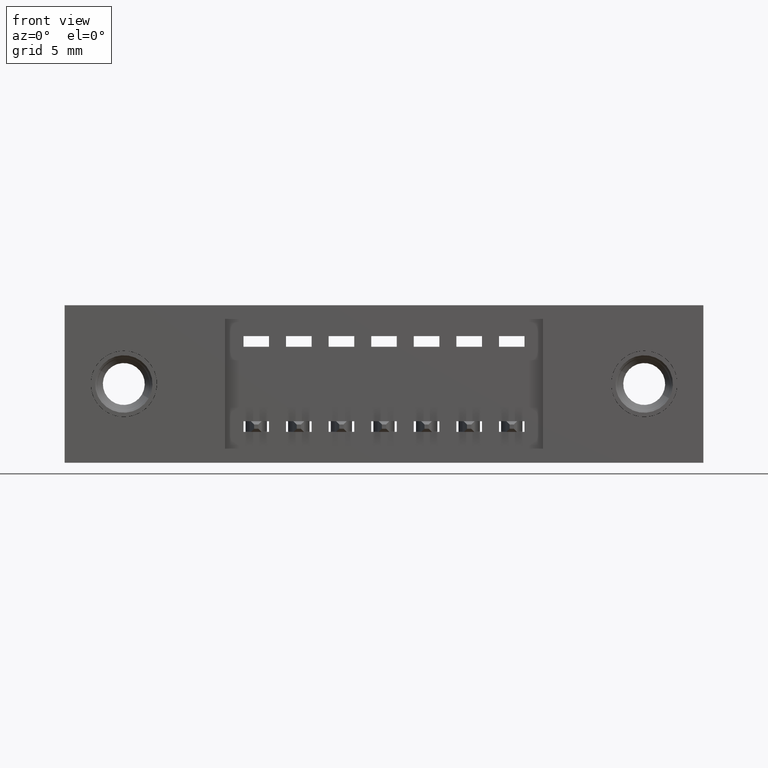
[diagram: clean part render]
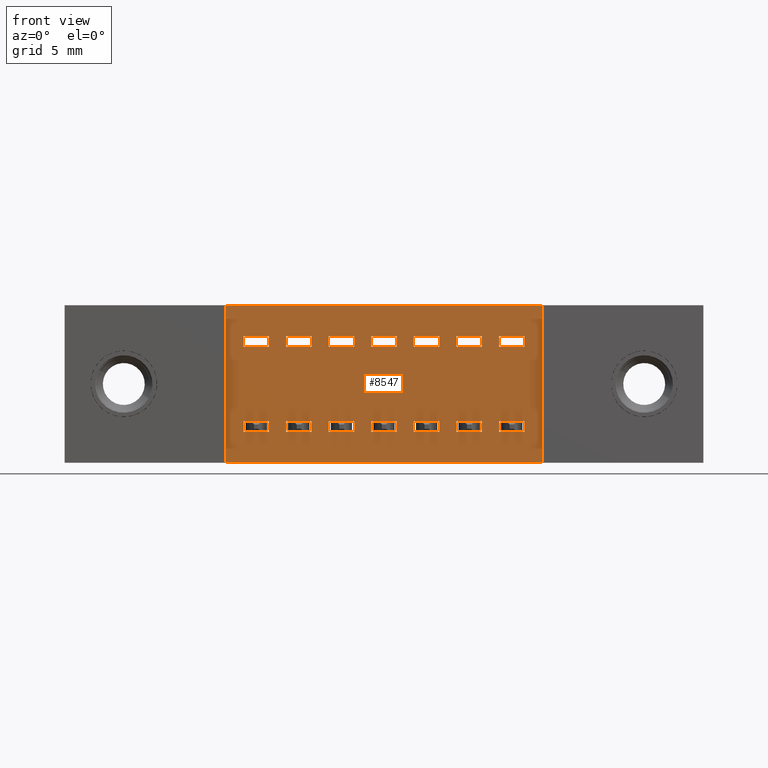
[diagram: same view with one face highlighted and labeled with its STEP entity id]
A machine part, front view. The second image highlights one B-rep face of the part: STEP entity #8547.
In plain terms, the highlighted planar face has unit normal (0, 1, 0).
Its self-contained STEP definition (entity closure, byte-faithful):
#4 = VECTOR ( 'NONE', #9526, 39.37007874015748100 ) ;
#14 = CARTESIAN_POINT ( 'NONE',  ( 0.5800000000000000700, 0.04000000000000000800, -0.07249999999999999500 ) ) ;
#21 = VERTEX_POINT ( 'NONE', #4263 ) ;
#34 = CARTESIAN_POINT ( 'NONE',  ( 0.9199999999999999300, 0.04000000000000000800, -0.07250000000000005100 ) ) ;
#35 = CARTESIAN_POINT ( 'NONE',  ( 0.8799999999999998900, 0.04000000000000000100, -0.2725000000000000800 ) ) ;
#76 = DIRECTION ( 'NONE',  ( 1.000000000000000000, -0.0000000000000000000, -0.0000000000000000000 ) ) ;
#86 = EDGE_CURVE ( 'NONE', #8010, #3227, #4441, .T. ) ;
#99 = DIRECTION ( 'NONE',  ( 0.0000000000000000000, 3.414809992080328000E-016, -1.000000000000000000 ) ) ;
#120 = VECTOR ( 'NONE', #9010, 39.37007874015748100 ) ;
#175 = EDGE_CURVE ( 'NONE', #4097, #2690, #9243, .T. ) ;
#180 = DIRECTION ( 'NONE',  ( 0.0000000000000000000, 3.414809992080328000E-016, -1.000000000000000000 ) ) ;
#184 = EDGE_CURVE ( 'NONE', #2696, #6935, #3927, .T. ) ;
#251 = EDGE_CURVE ( 'NONE', #2330, #9524, #7065, .T. ) ;
#271 = LINE ( 'NONE', #7861, #6742 ) ;
#283 = VECTOR ( 'NONE', #5199, 39.37007874015748100 ) ;
#292 = CARTESIAN_POINT ( 'NONE',  ( 0.3770000000000000600, 0.04000000000000000100, -0.3700000000000000000 ) ) ;
#317 = ORIENTED_EDGE ( 'NONE', *, *, #184, .T. ) ;
#322 = CARTESIAN_POINT ( 'NONE',  ( 0.5800000000000000700, 0.04000000000000000100, -0.09750000000000000300 ) ) ;
#346 = LINE ( 'NONE', #3853, #6317 ) ;
#360 = CARTESIAN_POINT ( 'NONE',  ( 0.7199999999999998600, 0.04000000000000000800, -0.2975000000000001000 ) ) ;
#395 = EDGE_CURVE ( 'NONE', #2705, #3015, #9584, .T. ) ;
#406 = CARTESIAN_POINT ( 'NONE',  ( 1.123000000000000200, 0.04000000000000000100, -0.3700000000000000000 ) ) ;
#409 = CARTESIAN_POINT ( 'NONE',  ( 0.6200000000000000000, 0.04000000000000000800, -0.2975000000000001000 ) ) ;
#413 = ORIENTED_EDGE ( 'NONE', *, *, #5372, .T. ) ;
#416 = LINE ( 'NONE', #2516, #4604 ) ;
#423 = VERTEX_POINT ( 'NONE', #4434 ) ;
#457 = CARTESIAN_POINT ( 'NONE',  ( 0.5200000000000000200, 0.04000000000000000100, -0.09750000000000000300 ) ) ;
#458 = ORIENTED_EDGE ( 'NONE', *, *, #8378, .T. ) ;
#475 = DIRECTION ( 'NONE',  ( 0.0000000000000000000, 3.414809992080328000E-016, -1.000000000000000000 ) ) ;
#476 = LINE ( 'NONE', #6934, #6205 ) ;
#480 = LINE ( 'NONE', #8050, #4 ) ;
#482 = DIRECTION ( 'NONE',  ( 1.000000000000000000, -0.0000000000000000000, -0.0000000000000000000 ) ) ;
#527 = VECTOR ( 'NONE', #8025, 39.37007874015748100 ) ;
#543 = CARTESIAN_POINT ( 'NONE',  ( 0.3770000000000000600, 0.04000000000000000100, 0.0000000000000000000 ) ) ;
#578 = CARTESIAN_POINT ( 'NONE',  ( 0.7799999999999999200, 0.04000000000000000100, -0.2725000000000000800 ) ) ;
#584 = ORIENTED_EDGE ( 'NONE', *, *, #1234, .T. ) ;
#625 = ORIENTED_EDGE ( 'NONE', *, *, #1334, .T. ) ;
#669 = LINE ( 'NONE', #5425, #4614 ) ;
#693 = CARTESIAN_POINT ( 'NONE',  ( 0.5200000000000000200, 0.04000000000000000100, -0.2725000000000000200 ) ) ;
#728 = LINE ( 'NONE', #9497, #4436 ) ;
#778 = DIRECTION ( 'NONE',  ( 1.000000000000000000, -0.0000000000000000000, -0.0000000000000000000 ) ) ;
#786 = VERTEX_POINT ( 'NONE', #2935 ) ;
#797 = VERTEX_POINT ( 'NONE', #9082 ) ;
#857 = EDGE_CURVE ( 'NONE', #6252, #1839, #3681, .T. ) ;
#874 = EDGE_CURVE ( 'NONE', #797, #4955, #1342, .T. ) ;
#875 = CARTESIAN_POINT ( 'NONE',  ( 0.5200000000000000200, 0.04000000000000000100, -0.2725000000000000200 ) ) ;
#905 = LINE ( 'NONE', #2046, #8841 ) ;
#935 = VERTEX_POINT ( 'NONE', #6325 ) ;
#972 = FACE_BOUND ( 'NONE', #2082, .T. ) ;
#995 = LINE ( 'NONE', #6880, #8915 ) ;
#1003 = CARTESIAN_POINT ( 'NONE',  ( 0.8199999999999998400, 0.04000000000000000800, -0.2975000000000001000 ) ) ;
#1030 = VERTEX_POINT ( 'NONE', #7048 ) ;
#1032 = CARTESIAN_POINT ( 'NONE',  ( 1.079999999999999800, 0.04000000000000000100, -0.2975000000000001000 ) ) ;
#1044 = VECTOR ( 'NONE', #6011, 39.37007874015748100 ) ;
#1077 = CARTESIAN_POINT ( 'NONE',  ( 0.9199999999999999300, 0.04000000000000000100, -0.09750000000000005900 ) ) ;
#1095 = LINE ( 'NONE', #3377, #7049 ) ;
#1102 = DIRECTION ( 'NONE',  ( 1.000000000000000000, -0.0000000000000000000, -0.0000000000000000000 ) ) ;
#1114 = EDGE_CURVE ( 'NONE', #9264, #4791, #5384, .T. ) ;
#1134 = VECTOR ( 'NONE', #6540, 39.37007874015748100 ) ;
#1136 = EDGE_LOOP ( 'NONE', ( #2318, #4781, #5507, #4465 ) ) ;
#1143 = VECTOR ( 'NONE', #8300, 39.37007874015748100 ) ;
#1151 = CARTESIAN_POINT ( 'NONE',  ( 1.020000000000000000, 0.04000000000000000800, -0.2975000000000001000 ) ) ;
#1165 = VERTEX_POINT ( 'NONE', #5758 ) ;
#1193 = VECTOR ( 'NONE', #6050, 39.37007874015748100 ) ;
#1215 = FACE_BOUND ( 'NONE', #7712, .T. ) ;
#1223 = VECTOR ( 'NONE', #3880, 39.37007874015748100 ) ;
#1234 = EDGE_CURVE ( 'NONE', #786, #4125, #8207, .T. ) ;
#1238 = EDGE_CURVE ( 'NONE', #3893, #1432, #480, .T. ) ;
#1239 = DIRECTION ( 'NONE',  ( -0.0000000000000000000, -3.414809992080328000E-016, -1.000000000000000000 ) ) ;
#1281 = EDGE_CURVE ( 'NONE', #1030, #786, #7740, .T. ) ;
#1284 = DIRECTION ( 'NONE',  ( 1.000000000000000000, -0.0000000000000000000, -0.0000000000000000000 ) ) ;
#1300 = EDGE_CURVE ( 'NONE', #6679, #1839, #7982, .T. ) ;
#1322 = CARTESIAN_POINT ( 'NONE',  ( 0.8199999999999998400, 0.04000000000000000800, -0.07250000000000003700 ) ) ;
#1329 = LINE ( 'NONE', #2047, #9687 ) ;
#1334 = EDGE_CURVE ( 'NONE', #4746, #4955, #1329, .T. ) ;
#1337 = ORIENTED_EDGE ( 'NONE', *, *, #2908, .T. ) ;
#1342 = LINE ( 'NONE', #4804, #5519 ) ;
#1366 = VECTOR ( 'NONE', #9474, 39.37007874015748100 ) ;
#1402 = EDGE_CURVE ( 'NONE', #7027, #5892, #5505, .T. ) ;
#1409 = ORIENTED_EDGE ( 'NONE', *, *, #6721, .F. ) ;
#1432 = VERTEX_POINT ( 'NONE', #2329 ) ;
#1445 = DIRECTION ( 'NONE',  ( 1.000000000000000000, -0.0000000000000000000, -0.0000000000000000000 ) ) ;
#1448 = CARTESIAN_POINT ( 'NONE',  ( 0.6799999999999999400, 0.04000000000000000100, -0.2975000000000001000 ) ) ;
#1450 = DIRECTION ( 'NONE',  ( 0.0000000000000000000, 3.414809992080328000E-016, -1.000000000000000000 ) ) ;
#1460 = FACE_BOUND ( 'NONE', #2990, .T. ) ;
#1470 = ORIENTED_EDGE ( 'NONE', *, *, #251, .T. ) ;
#1472 = ORIENTED_EDGE ( 'NONE', *, *, #3935, .T. ) ;
#1477 = PLANE ( 'NONE',  #4337 ) ;
#1482 = CARTESIAN_POINT ( 'NONE',  ( 0.6200000000000000000, 0.04000000000000000100, -0.2725000000000000800 ) ) ;
#1495 = EDGE_LOOP ( 'NONE', ( #1810, #4119, #458, #9535 ) ) ;
#1562 = VECTOR ( 'NONE', #5184, 39.37007874015748100 ) ;
#1564 = VERTEX_POINT ( 'NONE', #1448 ) ;
#1578 = ORIENTED_EDGE ( 'NONE', *, *, #9221, .F. ) ;
#1579 = DIRECTION ( 'NONE',  ( 0.0000000000000000000, 3.414809992080328000E-016, -1.000000000000000000 ) ) ;
#1581 = VECTOR ( 'NONE', #76, 39.37007874015748100 ) ;
#1654 = EDGE_LOOP ( 'NONE', ( #3632, #2311, #3057, #6734 ) ) ;
#1676 = EDGE_CURVE ( 'NONE', #5420, #797, #476, .T. ) ;
#1710 = DIRECTION ( 'NONE',  ( 0.0000000000000000000, 3.414809992080328000E-016, -1.000000000000000000 ) ) ;
#1712 = FACE_BOUND ( 'NONE', #6627, .T. ) ;
#1748 = CARTESIAN_POINT ( 'NONE',  ( 0.3770000000000000600, 0.04000000000000000100, 0.0000000000000000000 ) ) ;
#1797 = DIRECTION ( 'NONE',  ( 1.000000000000000000, -0.0000000000000000000, -0.0000000000000000000 ) ) ;
#1810 = ORIENTED_EDGE ( 'NONE', *, *, #8186, .F. ) ;
#1824 = EDGE_CURVE ( 'NONE', #4998, #1030, #1095, .T. ) ;
#1839 = VERTEX_POINT ( 'NONE', #1032 ) ;
#1853 = ORIENTED_EDGE ( 'NONE', *, *, #3592, .T. ) ;
#1857 = CARTESIAN_POINT ( 'NONE',  ( 0.9799999999999999800, 0.04000000000000000100, -0.2975000000000001000 ) ) ;
#1865 = CARTESIAN_POINT ( 'NONE',  ( 0.7799999999999999200, 0.04000000000000000100, -0.09750000000000001700 ) ) ;
#1867 = EDGE_LOOP ( 'NONE', ( #584, #413, #8350, #1939 ) ) ;
#1870 = DIRECTION ( 'NONE',  ( 1.000000000000000000, -0.0000000000000000000, -0.0000000000000000000 ) ) ;
#1920 = CARTESIAN_POINT ( 'NONE',  ( 0.5800000000000000700, 0.04000000000000000100, -0.09750000000000000300 ) ) ;
#1937 = LINE ( 'NONE', #5786, #8287 ) ;
#1939 = ORIENTED_EDGE ( 'NONE', *, *, #1281, .T. ) ;
#1992 = DIRECTION ( 'NONE',  ( -0.0000000000000000000, -3.414809992080328000E-016, -1.000000000000000000 ) ) ;
#2041 = EDGE_CURVE ( 'NONE', #4097, #3593, #3313, .T. ) ;
#2046 = CARTESIAN_POINT ( 'NONE',  ( 1.020000000000000000, 0.04000000000000000100, -0.09750000000000007300 ) ) ;
#2047 = CARTESIAN_POINT ( 'NONE',  ( 0.4799999999999999800, 0.04000000000000000100, -0.09749999999999998900 ) ) ;
#2073 = CARTESIAN_POINT ( 'NONE',  ( 0.4200000000000000400, 0.04000000000000000100, -0.2725000000000000200 ) ) ;
#2074 = ORIENTED_EDGE ( 'NONE', *, *, #8594, .F. ) ;
#2082 = EDGE_LOOP ( 'NONE', ( #8098, #1472, #8567, #2103 ) ) ;
#2103 = ORIENTED_EDGE ( 'NONE', *, *, #3299, .F. ) ;
#2138 = ORIENTED_EDGE ( 'NONE', *, *, #4993, .T. ) ;
#2156 = VECTOR ( 'NONE', #8081, 39.37007874015748100 ) ;
#2176 = DIRECTION ( 'NONE',  ( 1.000000000000000000, -0.0000000000000000000, -0.0000000000000000000 ) ) ;
#2182 = ORIENTED_EDGE ( 'NONE', *, *, #2041, .F. ) ;
#2186 = CARTESIAN_POINT ( 'NONE',  ( 0.5200000000000000200, 0.04000000000000000800, -0.2975000000000000400 ) ) ;
#2245 = CARTESIAN_POINT ( 'NONE',  ( 0.4200000000000000400, 0.04000000000000000800, -0.2975000000000000400 ) ) ;
#2266 = CARTESIAN_POINT ( 'NONE',  ( 0.8799999999999998900, 0.04000000000000000100, -0.09750000000000003100 ) ) ;
#2306 = EDGE_CURVE ( 'NONE', #7691, #3893, #5027, .T. ) ;
#2311 = ORIENTED_EDGE ( 'NONE', *, *, #5328, .T. ) ;
#2318 = ORIENTED_EDGE ( 'NONE', *, *, #4448, .F. ) ;
#2329 = CARTESIAN_POINT ( 'NONE',  ( 0.9799999999999999800, 0.04000000000000000100, -0.09750000000000005900 ) ) ;
#2330 = VERTEX_POINT ( 'NONE', #5142 ) ;
#2334 = CARTESIAN_POINT ( 'NONE',  ( 0.8799999999999998900, 0.04000000000000000100, -0.2975000000000001000 ) ) ;
#2337 = VECTOR ( 'NONE', #4017, 39.37007874015748100 ) ;
#2352 = CARTESIAN_POINT ( 'NONE',  ( 0.4800000000000000900, 0.04000000000000000100, -0.2975000000000000400 ) ) ;
#2369 = ORIENTED_EDGE ( 'NONE', *, *, #8509, .F. ) ;
#2492 = VERTEX_POINT ( 'NONE', #9442 ) ;
#2499 = CARTESIAN_POINT ( 'NONE',  ( 0.6799999999999999400, 0.04000000000000000800, -0.07250000000000000900 ) ) ;
#2516 = CARTESIAN_POINT ( 'NONE',  ( 0.8199999999999998400, 0.04000000000000000800, -0.07250000000000003700 ) ) ;
#2520 = VERTEX_POINT ( 'NONE', #6294 ) ;
#2599 = CARTESIAN_POINT ( 'NONE',  ( 0.4799999999999999800, 0.04000000000000000800, -0.07249999999999998100 ) ) ;
#2602 = VECTOR ( 'NONE', #1870, 39.37007874015748100 ) ;
#2611 = ORIENTED_EDGE ( 'NONE', *, *, #874, .F. ) ;
#2645 = LINE ( 'NONE', #1077, #527 ) ;
#2647 = CARTESIAN_POINT ( 'NONE',  ( 0.7799999999999999200, 0.04000000000000000100, -0.2975000000000001000 ) ) ;
#2648 = DIRECTION ( 'NONE',  ( 1.000000000000000000, -0.0000000000000000000, -0.0000000000000000000 ) ) ;
#2651 = EDGE_CURVE ( 'NONE', #6306, #2790, #7951, .T. ) ;
#2671 = VERTEX_POINT ( 'NONE', #6855 ) ;
#2677 = ORIENTED_EDGE ( 'NONE', *, *, #5956, .F. ) ;
#2690 = VERTEX_POINT ( 'NONE', #5701 ) ;
#2696 = VERTEX_POINT ( 'NONE', #5611 ) ;
#2705 = VERTEX_POINT ( 'NONE', #5577 ) ;
#2717 = EDGE_CURVE ( 'NONE', #8588, #9264, #5729, .T. ) ;
#2730 = CARTESIAN_POINT ( 'NONE',  ( 0.8199999999999998400, 0.04000000000000000100, -0.09750000000000003100 ) ) ;
#2737 = VECTOR ( 'NONE', #8762, 39.37007874015748100 ) ;
#2790 = VERTEX_POINT ( 'NONE', #3964 ) ;
#2848 = FACE_BOUND ( 'NONE', #5770, .T. ) ;
#2878 = ORIENTED_EDGE ( 'NONE', *, *, #2717, .T. ) ;
#2906 = DIRECTION ( 'NONE',  ( 1.000000000000000000, -0.0000000000000000000, -0.0000000000000000000 ) ) ;
#2908 = EDGE_CURVE ( 'NONE', #8676, #2330, #1937, .T. ) ;
#2921 = DIRECTION ( 'NONE',  ( 1.000000000000000000, -0.0000000000000000000, -0.0000000000000000000 ) ) ;
#2935 = CARTESIAN_POINT ( 'NONE',  ( 1.123000000000000200, 0.04000000000000000100, -0.3700000000000000000 ) ) ;
#2966 = VECTOR ( 'NONE', #482, 39.37007874015748100 ) ;
#2990 = EDGE_LOOP ( 'NONE', ( #3700, #7763, #2878, #8818 ) ) ;
#3015 = VERTEX_POINT ( 'NONE', #409 ) ;
#3041 = VERTEX_POINT ( 'NONE', #8137 ) ;
#3053 = VECTOR ( 'NONE', #2176, 39.37007874015748100 ) ;
#3057 = ORIENTED_EDGE ( 'NONE', *, *, #86, .T. ) ;
#3077 = EDGE_CURVE ( 'NONE', #3233, #4457, #4629, .T. ) ;
#3079 = FACE_BOUND ( 'NONE', #1136, .T. ) ;
#3086 = DIRECTION ( 'NONE',  ( 0.0000000000000000000, 3.414809992080328000E-016, -1.000000000000000000 ) ) ;
#3121 = CARTESIAN_POINT ( 'NONE',  ( 0.9799999999999999800, 0.04000000000000000100, -0.2725000000000000800 ) ) ;
#3144 = CARTESIAN_POINT ( 'NONE',  ( 1.020000000000000000, 0.04000000000000000800, -0.2975000000000001000 ) ) ;
#3203 = CARTESIAN_POINT ( 'NONE',  ( 0.7199999999999998600, 0.04000000000000000100, -0.2725000000000000800 ) ) ;
#3210 = VECTOR ( 'NONE', #99, 39.37007874015748100 ) ;
#3218 = DIRECTION ( 'NONE',  ( 0.0000000000000000000, 3.414809992080328000E-016, -1.000000000000000000 ) ) ;
#3227 = VERTEX_POINT ( 'NONE', #2266 ) ;
#3233 = VERTEX_POINT ( 'NONE', #3826 ) ;
#3259 = DIRECTION ( 'NONE',  ( 1.000000000000000000, -0.0000000000000000000, -0.0000000000000000000 ) ) ;
#3274 = DIRECTION ( 'NONE',  ( 1.000000000000000000, -0.0000000000000000000, -0.0000000000000000000 ) ) ;
#3299 = EDGE_CURVE ( 'NONE', #1165, #2520, #6549, .T. ) ;
#3303 = DIRECTION ( 'NONE',  ( -0.0000000000000000000, -3.414809992080328000E-016, -1.000000000000000000 ) ) ;
#3310 = DIRECTION ( 'NONE',  ( 1.000000000000000000, -0.0000000000000000000, -0.0000000000000000000 ) ) ;
#3311 = VECTOR ( 'NONE', #3259, 39.37007874015748100 ) ;
#3313 = LINE ( 'NONE', #3203, #9110 ) ;
#3328 = FACE_BOUND ( 'NONE', #8437, .T. ) ;
#3377 = CARTESIAN_POINT ( 'NONE',  ( 0.3770000000000000600, 0.04000000000000000100, -0.3700000000000000000 ) ) ;
#3436 = DIRECTION ( 'NONE',  ( 1.000000000000000000, -0.0000000000000000000, -0.0000000000000000000 ) ) ;
#3471 = LINE ( 'NONE', #5775, #1134 ) ;
#3489 = CARTESIAN_POINT ( 'NONE',  ( 0.5800000000000000700, 0.04000000000000000100, -0.2975000000000000400 ) ) ;
#3516 = CARTESIAN_POINT ( 'NONE',  ( 0.9199999999999999300, 0.04000000000000000100, -0.2725000000000000800 ) ) ;
#3563 = VECTOR ( 'NONE', #1710, 39.37007874015748100 ) ;
#3579 = ORIENTED_EDGE ( 'NONE', *, *, #857, .F. ) ;
#3592 = EDGE_CURVE ( 'NONE', #4555, #4225, #8162, .T. ) ;
#3593 = VERTEX_POINT ( 'NONE', #360 ) ;
#3602 = VECTOR ( 'NONE', #180, 39.37007874015748100 ) ;
#3617 = CARTESIAN_POINT ( 'NONE',  ( 0.4200000000000000400, 0.04000000000000000100, -0.2725000000000000200 ) ) ;
#3632 = ORIENTED_EDGE ( 'NONE', *, *, #6129, .F. ) ;
#3639 = CARTESIAN_POINT ( 'NONE',  ( 0.4800000000000000900, 0.04000000000000000100, -0.09749999999999998900 ) ) ;
#3674 = VECTOR ( 'NONE', #3218, 39.37007874015748100 ) ;
#3681 = LINE ( 'NONE', #1151, #7523 ) ;
#3691 = DIRECTION ( 'NONE',  ( -0.0000000000000000000, -0.0000000000000000000, -1.000000000000000000 ) ) ;
#3700 = ORIENTED_EDGE ( 'NONE', *, *, #7823, .F. ) ;
#3712 = DIRECTION ( 'NONE',  ( 1.000000000000000000, -0.0000000000000000000, -0.0000000000000000000 ) ) ;
#3754 = ORIENTED_EDGE ( 'NONE', *, *, #5187, .F. ) ;
#3826 = CARTESIAN_POINT ( 'NONE',  ( 0.4200000000000000400, 0.04000000000000000100, -0.2725000000000000200 ) ) ;
#3841 = DIRECTION ( 'NONE',  ( -0.0000000000000000000, 1.000000000000000000, 0.0000000000000000000 ) ) ;
#3853 = CARTESIAN_POINT ( 'NONE',  ( 0.5800000000000000700, 0.04000000000000000100, -0.2725000000000000200 ) ) ;
#3880 = DIRECTION ( 'NONE',  ( 0.0000000000000000000, 3.414809992080328000E-016, -1.000000000000000000 ) ) ;
#3893 = VERTEX_POINT ( 'NONE', #6930 ) ;
#3927 = LINE ( 'NONE', #35, #3210 ) ;
#3935 = EDGE_CURVE ( 'NONE', #5185, #9381, #669, .T. ) ;
#3961 = LINE ( 'NONE', #6771, #7774 ) ;
#3964 = CARTESIAN_POINT ( 'NONE',  ( 0.8199999999999998400, 0.04000000000000000800, -0.2975000000000001000 ) ) ;
#3965 = LINE ( 'NONE', #5218, #9511 ) ;
#3974 = LINE ( 'NONE', #1003, #6036 ) ;
#4017 = DIRECTION ( 'NONE',  ( 0.0000000000000000000, 0.0000000000000000000, 1.000000000000000000 ) ) ;
#4038 = CARTESIAN_POINT ( 'NONE',  ( 0.6799999999999999400, 0.04000000000000000100, -0.2725000000000000800 ) ) ;
#4097 = VERTEX_POINT ( 'NONE', #9166 ) ;
#4119 = ORIENTED_EDGE ( 'NONE', *, *, #3077, .F. ) ;
#4125 = VERTEX_POINT ( 'NONE', #5696 ) ;
#4151 = ORIENTED_EDGE ( 'NONE', *, *, #1676, .F. ) ;
#4162 = EDGE_CURVE ( 'NONE', #7219, #3227, #6774, .T. ) ;
#4220 = CARTESIAN_POINT ( 'NONE',  ( 1.020000000000000000, 0.04000000000000000800, -0.07250000000000006400 ) ) ;
#4225 = VERTEX_POINT ( 'NONE', #322 ) ;
#4243 = DIRECTION ( 'NONE',  ( -0.0000000000000000000, -3.414809992080328000E-016, -1.000000000000000000 ) ) ;
#4263 = CARTESIAN_POINT ( 'NONE',  ( 0.9199999999999999300, 0.04000000000000000800, -0.2975000000000001000 ) ) ;
#4276 = EDGE_CURVE ( 'NONE', #8588, #21, #5815, .T. ) ;
#4309 = LINE ( 'NONE', #6825, #120 ) ;
#4323 = ORIENTED_EDGE ( 'NONE', *, *, #2651, .F. ) ;
#4337 = AXIS2_PLACEMENT_3D ( 'NONE', #8408, #3841, #9137 ) ;
#4373 = EDGE_CURVE ( 'NONE', #6834, #935, #905, .T. ) ;
#4392 = VECTOR ( 'NONE', #475, 39.37007874015748100 ) ;
#4419 = CARTESIAN_POINT ( 'NONE',  ( 0.7199999999999998600, 0.04000000000000000100, -0.09750000000000001700 ) ) ;
#4433 = ORIENTED_EDGE ( 'NONE', *, *, #1402, .T. ) ;
#4434 = CARTESIAN_POINT ( 'NONE',  ( 0.7199999999999998600, 0.04000000000000000100, -0.09750000000000001700 ) ) ;
#4436 = VECTOR ( 'NONE', #4243, 39.37007874015748100 ) ;
#4441 = LINE ( 'NONE', #5356, #6226 ) ;
#4448 = EDGE_CURVE ( 'NONE', #3015, #1564, #4856, .T. ) ;
#4457 = VERTEX_POINT ( 'NONE', #2245 ) ;
#4465 = ORIENTED_EDGE ( 'NONE', *, *, #5314, .T. ) ;
#4510 = VECTOR ( 'NONE', #778, 39.37007874015748100 ) ;
#4521 = LINE ( 'NONE', #5923, #6803 ) ;
#4530 = EDGE_LOOP ( 'NONE', ( #2369, #2138, #1853, #8168 ) ) ;
#4533 = LINE ( 'NONE', #693, #6571 ) ;
#4544 = VERTEX_POINT ( 'NONE', #2352 ) ;
#4555 = VERTEX_POINT ( 'NONE', #14 ) ;
#4575 = VERTEX_POINT ( 'NONE', #5485 ) ;
#4597 = CARTESIAN_POINT ( 'NONE',  ( 0.7199999999999998600, 0.04000000000000000100, -0.2725000000000000800 ) ) ;
#4599 = DIRECTION ( 'NONE',  ( 1.000000000000000000, -0.0000000000000000000, -0.0000000000000000000 ) ) ;
#4604 = VECTOR ( 'NONE', #3310, 39.37007874015748100 ) ;
#4613 = CARTESIAN_POINT ( 'NONE',  ( 0.5200000000000000200, 0.04000000000000000100, -0.09750000000000000300 ) ) ;
#4614 = VECTOR ( 'NONE', #9898, 39.37007874015748100 ) ;
#4618 = ORIENTED_EDGE ( 'NONE', *, *, #9245, .T. ) ;
#4619 = ORIENTED_EDGE ( 'NONE', *, *, #175, .T. ) ;
#4629 = LINE ( 'NONE', #2073, #4392 ) ;
#4636 = CARTESIAN_POINT ( 'NONE',  ( 0.7199999999999998600, 0.04000000000000000800, -0.2975000000000001000 ) ) ;
#4655 = EDGE_LOOP ( 'NONE', ( #4151, #5546, #625, #2611 ) ) ;
#4702 = CARTESIAN_POINT ( 'NONE',  ( 0.6200000000000000000, 0.04000000000000000100, -0.09750000000000001700 ) ) ;
#4707 = DIRECTION ( 'NONE',  ( -0.0000000000000000000, -3.414809992080328000E-016, -1.000000000000000000 ) ) ;
#4731 = VECTOR ( 'NONE', #2648, 39.37007874015748100 ) ;
#4732 = EDGE_CURVE ( 'NONE', #2790, #6935, #3974, .T. ) ;
#4746 = VERTEX_POINT ( 'NONE', #2599 ) ;
#4781 = ORIENTED_EDGE ( 'NONE', *, *, #395, .F. ) ;
#4784 = CARTESIAN_POINT ( 'NONE',  ( 0.8199999999999998400, 0.04000000000000000100, -0.2725000000000000800 ) ) ;
#4791 = VERTEX_POINT ( 'NONE', #1857 ) ;
#4804 = CARTESIAN_POINT ( 'NONE',  ( 0.4200000000000000400, 0.04000000000000000100, -0.09749999999999998900 ) ) ;
#4820 = VERTEX_POINT ( 'NONE', #5818 ) ;
#4856 = LINE ( 'NONE', #6897, #8382 ) ;
#4923 = FACE_BOUND ( 'NONE', #4981, .T. ) ;
#4955 = VERTEX_POINT ( 'NONE', #3639 ) ;
#4966 = VERTEX_POINT ( 'NONE', #9670 ) ;
#4981 = EDGE_LOOP ( 'NONE', ( #3579, #2074, #6553, #6016 ) ) ;
#4993 = EDGE_CURVE ( 'NONE', #7755, #4555, #7683, .T. ) ;
#4998 = VERTEX_POINT ( 'NONE', #543 ) ;
#5008 = DIRECTION ( 'NONE',  ( 1.000000000000000000, -0.0000000000000000000, -0.0000000000000000000 ) ) ;
#5010 = CARTESIAN_POINT ( 'NONE',  ( 0.4200000000000000400, 0.04000000000000000800, -0.2975000000000000400 ) ) ;
#5027 = LINE ( 'NONE', #34, #8770 ) ;
#5039 = CARTESIAN_POINT ( 'NONE',  ( 0.9199999999999999300, 0.04000000000000000100, -0.2725000000000000800 ) ) ;
#5043 = VECTOR ( 'NONE', #5008, 39.37007874015748100 ) ;
#5047 = LINE ( 'NONE', #3617, #2966 ) ;
#5142 = CARTESIAN_POINT ( 'NONE',  ( 0.7799999999999999200, 0.04000000000000000800, -0.07250000000000002300 ) ) ;
#5157 = FACE_BOUND ( 'NONE', #4655, .T. ) ;
#5184 = DIRECTION ( 'NONE',  ( 1.000000000000000000, -0.0000000000000000000, -0.0000000000000000000 ) ) ;
#5185 = VERTEX_POINT ( 'NONE', #6199 ) ;
#5187 = EDGE_CURVE ( 'NONE', #3593, #5948, #9529, .T. ) ;
#5199 = DIRECTION ( 'NONE',  ( -0.0000000000000000000, -3.414809992080328000E-016, -1.000000000000000000 ) ) ;
#5218 = CARTESIAN_POINT ( 'NONE',  ( 0.7199999999999998600, 0.04000000000000000100, -0.09750000000000001700 ) ) ;
#5314 = EDGE_CURVE ( 'NONE', #4966, #1564, #8380, .T. ) ;
#5328 = EDGE_CURVE ( 'NONE', #6768, #8010, #416, .T. ) ;
#5356 = CARTESIAN_POINT ( 'NONE',  ( 0.8799999999999998900, 0.04000000000000000100, -0.09750000000000003100 ) ) ;
#5372 = EDGE_CURVE ( 'NONE', #4125, #4998, #8144, .T. ) ;
#5384 = LINE ( 'NONE', #7791, #1223 ) ;
#5420 = VERTEX_POINT ( 'NONE', #7262 ) ;
#5425 = CARTESIAN_POINT ( 'NONE',  ( 0.6200000000000000000, 0.04000000000000000800, -0.07250000000000000900 ) ) ;
#5444 = CARTESIAN_POINT ( 'NONE',  ( 1.079999999999999800, 0.04000000000000000100, -0.2725000000000000800 ) ) ;
#5485 = CARTESIAN_POINT ( 'NONE',  ( 0.9199999999999999300, 0.04000000000000000100, -0.09750000000000005900 ) ) ;
#5505 = LINE ( 'NONE', #5587, #5043 ) ;
#5507 = ORIENTED_EDGE ( 'NONE', *, *, #9786, .T. ) ;
#5519 = VECTOR ( 'NONE', #7719, 39.37007874015748100 ) ;
#5535 = ORIENTED_EDGE ( 'NONE', *, *, #7267, .F. ) ;
#5546 = ORIENTED_EDGE ( 'NONE', *, *, #6054, .T. ) ;
#5577 = CARTESIAN_POINT ( 'NONE',  ( 0.6200000000000000000, 0.04000000000000000100, -0.2725000000000000800 ) ) ;
#5587 = CARTESIAN_POINT ( 'NONE',  ( 0.5200000000000000200, 0.04000000000000000100, -0.2725000000000000200 ) ) ;
#5604 = CARTESIAN_POINT ( 'NONE',  ( 0.5200000000000000200, 0.04000000000000000800, -0.2975000000000000400 ) ) ;
#5611 = CARTESIAN_POINT ( 'NONE',  ( 0.8799999999999998900, 0.04000000000000000100, -0.2725000000000000800 ) ) ;
#5629 = FACE_BOUND ( 'NONE', #8288, .T. ) ;
#5631 = ORIENTED_EDGE ( 'NONE', *, *, #4373, .F. ) ;
#5696 = CARTESIAN_POINT ( 'NONE',  ( 1.123000000000000200, 0.04000000000000000100, -1.895600338963814900E-033 ) ) ;
#5701 = CARTESIAN_POINT ( 'NONE',  ( 0.7799999999999999200, 0.04000000000000000100, -0.2725000000000000800 ) ) ;
#5703 = VERTEX_POINT ( 'NONE', #2186 ) ;
#5729 = LINE ( 'NONE', #5039, #1562 ) ;
#5733 = CARTESIAN_POINT ( 'NONE',  ( 0.8199999999999998400, 0.04000000000000000100, -0.09750000000000003100 ) ) ;
#5758 = CARTESIAN_POINT ( 'NONE',  ( 0.6200000000000000000, 0.04000000000000000100, -0.09750000000000001700 ) ) ;
#5770 = EDGE_LOOP ( 'NONE', ( #5535, #6583, #6699, #5631 ) ) ;
#5775 = CARTESIAN_POINT ( 'NONE',  ( 1.020000000000000000, 0.04000000000000000100, -0.2725000000000000800 ) ) ;
#5786 = CARTESIAN_POINT ( 'NONE',  ( 0.7199999999999998600, 0.04000000000000000800, -0.07250000000000002300 ) ) ;
#5794 = ORIENTED_EDGE ( 'NONE', *, *, #4732, .F. ) ;
#5807 = DIRECTION ( 'NONE',  ( -0.0000000000000000000, -3.414809992080328000E-016, -1.000000000000000000 ) ) ;
#5815 = LINE ( 'NONE', #3516, #2156 ) ;
#5818 = CARTESIAN_POINT ( 'NONE',  ( 0.4799999999999999800, 0.04000000000000000100, -0.2725000000000000200 ) ) ;
#5862 = EDGE_CURVE ( 'NONE', #4820, #4544, #9625, .T. ) ;
#5866 = CARTESIAN_POINT ( 'NONE',  ( 1.020000000000000000, 0.04000000000000000100, -0.09750000000000007300 ) ) ;
#5882 = ORIENTED_EDGE ( 'NONE', *, *, #1238, .T. ) ;
#5892 = VERTEX_POINT ( 'NONE', #7882 ) ;
#5919 = VECTOR ( 'NONE', #6434, 39.37007874015748100 ) ;
#5923 = CARTESIAN_POINT ( 'NONE',  ( 1.079999999999999800, 0.04000000000000000100, -0.09750000000000007300 ) ) ;
#5938 = CARTESIAN_POINT ( 'NONE',  ( 0.9199999999999999300, 0.04000000000000000800, -0.07250000000000005100 ) ) ;
#5947 = CARTESIAN_POINT ( 'NONE',  ( 1.079999999999999800, 0.04000000000000000100, -0.2725000000000000800 ) ) ;
#5948 = VERTEX_POINT ( 'NONE', #2647 ) ;
#5956 = EDGE_CURVE ( 'NONE', #7691, #4575, #2645, .T. ) ;
#5960 = VECTOR ( 'NONE', #8323, 39.37007874015748100 ) ;
#5982 = VECTOR ( 'NONE', #7839, 39.37007874015748100 ) ;
#6009 = EDGE_CURVE ( 'NONE', #8676, #423, #8246, .T. ) ;
#6011 = DIRECTION ( 'NONE',  ( 1.000000000000000000, -0.0000000000000000000, -0.0000000000000000000 ) ) ;
#6016 = ORIENTED_EDGE ( 'NONE', *, *, #1300, .T. ) ;
#6036 = VECTOR ( 'NONE', #1797, 39.37007874015748100 ) ;
#6050 = DIRECTION ( 'NONE',  ( 0.0000000000000000000, 3.414809992080328000E-016, -1.000000000000000000 ) ) ;
#6054 = EDGE_CURVE ( 'NONE', #5420, #4746, #3961, .T. ) ;
#6124 = VECTOR ( 'NONE', #1992, 39.37007874015748100 ) ;
#6129 = EDGE_CURVE ( 'NONE', #6768, #7219, #7318, .T. ) ;
#6154 = DIRECTION ( 'NONE',  ( 0.0000000000000000000, 3.414809992080328000E-016, -1.000000000000000000 ) ) ;
#6199 = CARTESIAN_POINT ( 'NONE',  ( 0.6200000000000000000, 0.04000000000000000800, -0.07250000000000000900 ) ) ;
#6205 = VECTOR ( 'NONE', #7732, 39.37007874015748100 ) ;
#6226 = VECTOR ( 'NONE', #4707, 39.37007874015748100 ) ;
#6245 = CARTESIAN_POINT ( 'NONE',  ( 1.020000000000000000, 0.04000000000000000100, -0.2725000000000000800 ) ) ;
#6252 = VERTEX_POINT ( 'NONE', #3144 ) ;
#6294 = CARTESIAN_POINT ( 'NONE',  ( 0.6799999999999999400, 0.04000000000000000100, -0.09750000000000001700 ) ) ;
#6306 = VERTEX_POINT ( 'NONE', #4784 ) ;
#6309 = CARTESIAN_POINT ( 'NONE',  ( 0.7199999999999998600, 0.04000000000000000800, -0.07250000000000002300 ) ) ;
#6317 = VECTOR ( 'NONE', #3086, 39.37007874015748100 ) ;
#6321 = CARTESIAN_POINT ( 'NONE',  ( 0.8799999999999998900, 0.04000000000000000800, -0.07250000000000003700 ) ) ;
#6325 = CARTESIAN_POINT ( 'NONE',  ( 1.079999999999999800, 0.04000000000000000100, -0.09750000000000007300 ) ) ;
#6388 = VECTOR ( 'NONE', #7864, 39.37007874015748100 ) ;
#6434 = DIRECTION ( 'NONE',  ( -1.000000000000000000, -0.0000000000000000000, 2.541019221131118900E-033 ) ) ;
#6540 = DIRECTION ( 'NONE',  ( 1.000000000000000000, -0.0000000000000000000, -0.0000000000000000000 ) ) ;
#6549 = LINE ( 'NONE', #4702, #4510 ) ;
#6553 = ORIENTED_EDGE ( 'NONE', *, *, #7164, .T. ) ;
#6571 = VECTOR ( 'NONE', #1450, 39.37007874015748100 ) ;
#6583 = ORIENTED_EDGE ( 'NONE', *, *, #7152, .T. ) ;
#6627 = EDGE_LOOP ( 'NONE', ( #2677, #9501, #5882, #9488 ) ) ;
#6679 = VERTEX_POINT ( 'NONE', #5947 ) ;
#6689 = ORIENTED_EDGE ( 'NONE', *, *, #9769, .T. ) ;
#6699 = ORIENTED_EDGE ( 'NONE', *, *, #9644, .T. ) ;
#6721 = EDGE_CURVE ( 'NONE', #423, #9524, #3965, .T. ) ;
#6734 = ORIENTED_EDGE ( 'NONE', *, *, #4162, .F. ) ;
#6742 = VECTOR ( 'NONE', #3303, 39.37007874015748100 ) ;
#6768 = VERTEX_POINT ( 'NONE', #1322 ) ;
#6771 = CARTESIAN_POINT ( 'NONE',  ( 0.4200000000000000400, 0.04000000000000000800, -0.07249999999999998100 ) ) ;
#6774 = LINE ( 'NONE', #5733, #4731 ) ;
#6800 = ORIENTED_EDGE ( 'NONE', *, *, #7079, .F. ) ;
#6803 = VECTOR ( 'NONE', #1239, 39.37007874015748100 ) ;
#6825 = CARTESIAN_POINT ( 'NONE',  ( 0.8199999999999998400, 0.04000000000000000100, -0.2725000000000000800 ) ) ;
#6834 = VERTEX_POINT ( 'NONE', #9780 ) ;
#6855 = CARTESIAN_POINT ( 'NONE',  ( 1.020000000000000000, 0.04000000000000000100, -0.2725000000000000800 ) ) ;
#6880 = CARTESIAN_POINT ( 'NONE',  ( 0.9199999999999999300, 0.04000000000000000800, -0.2975000000000001000 ) ) ;
#6897 = CARTESIAN_POINT ( 'NONE',  ( 0.6200000000000000000, 0.04000000000000000800, -0.2975000000000001000 ) ) ;
#6930 = CARTESIAN_POINT ( 'NONE',  ( 0.9799999999999999800, 0.04000000000000000800, -0.07250000000000005100 ) ) ;
#6934 = CARTESIAN_POINT ( 'NONE',  ( 0.4200000000000000400, 0.04000000000000000100, -0.09749999999999998900 ) ) ;
#6935 = VERTEX_POINT ( 'NONE', #2334 ) ;
#6944 = FACE_BOUND ( 'NONE', #1654, .T. ) ;
#6987 = DIRECTION ( 'NONE',  ( 1.000000000000000000, -0.0000000000000000000, -0.0000000000000000000 ) ) ;
#7027 = VERTEX_POINT ( 'NONE', #875 ) ;
#7044 = EDGE_CURVE ( 'NONE', #5185, #1165, #271, .T. ) ;
#7048 = CARTESIAN_POINT ( 'NONE',  ( 0.3770000000000000600, 0.04000000000000000100, -0.3700000000000000000 ) ) ;
#7049 = VECTOR ( 'NONE', #3691, 39.37007874015748100 ) ;
#7065 = LINE ( 'NONE', #7131, #2737 ) ;
#7079 = EDGE_CURVE ( 'NONE', #5703, #8233, #8237, .T. ) ;
#7131 = CARTESIAN_POINT ( 'NONE',  ( 0.7799999999999999200, 0.04000000000000000100, -0.09750000000000001700 ) ) ;
#7152 = EDGE_CURVE ( 'NONE', #3041, #2492, #9267, .T. ) ;
#7158 = LINE ( 'NONE', #7818, #3311 ) ;
#7164 = EDGE_CURVE ( 'NONE', #2671, #6679, #3471, .T. ) ;
#7175 = FACE_BOUND ( 'NONE', #1495, .T. ) ;
#7183 = LINE ( 'NONE', #5010, #2602 ) ;
#7219 = VERTEX_POINT ( 'NONE', #2730 ) ;
#7262 = CARTESIAN_POINT ( 'NONE',  ( 0.4200000000000000400, 0.04000000000000000800, -0.07249999999999998100 ) ) ;
#7267 = EDGE_CURVE ( 'NONE', #3041, #6834, #8345, .T. ) ;
#7292 = VECTOR ( 'NONE', #3274, 39.37007874015748100 ) ;
#7318 = LINE ( 'NONE', #9044, #1143 ) ;
#7370 = LINE ( 'NONE', #578, #1193 ) ;
#7503 = ORIENTED_EDGE ( 'NONE', *, *, #8458, .T. ) ;
#7523 = VECTOR ( 'NONE', #3436, 39.37007874015748100 ) ;
#7564 = VECTOR ( 'NONE', #6987, 39.37007874015748100 ) ;
#7593 = LINE ( 'NONE', #9008, #3053 ) ;
#7620 = LINE ( 'NONE', #4613, #7851 ) ;
#7683 = LINE ( 'NONE', #9695, #1044 ) ;
#7691 = VERTEX_POINT ( 'NONE', #5938 ) ;
#7712 = EDGE_LOOP ( 'NONE', ( #6800, #1578, #4433, #4618 ) ) ;
#7715 = CARTESIAN_POINT ( 'NONE',  ( 0.9199999999999999300, 0.04000000000000000100, -0.2725000000000000800 ) ) ;
#7719 = DIRECTION ( 'NONE',  ( 1.000000000000000000, -0.0000000000000000000, -0.0000000000000000000 ) ) ;
#7732 = DIRECTION ( 'NONE',  ( -0.0000000000000000000, -3.414809992080328000E-016, -1.000000000000000000 ) ) ;
#7740 = LINE ( 'NONE', #292, #5982 ) ;
#7755 = VERTEX_POINT ( 'NONE', #9685 ) ;
#7763 = ORIENTED_EDGE ( 'NONE', *, *, #4276, .F. ) ;
#7774 = VECTOR ( 'NONE', #2921, 39.37007874015748100 ) ;
#7791 = CARTESIAN_POINT ( 'NONE',  ( 0.9799999999999999800, 0.04000000000000000100, -0.2725000000000000800 ) ) ;
#7818 = CARTESIAN_POINT ( 'NONE',  ( 0.5200000000000000200, 0.04000000000000000100, -0.09750000000000000300 ) ) ;
#7823 = EDGE_CURVE ( 'NONE', #21, #4791, #995, .T. ) ;
#7839 = DIRECTION ( 'NONE',  ( 1.000000000000000000, 0.0000000000000000000, 0.0000000000000000000 ) ) ;
#7851 = VECTOR ( 'NONE', #9823, 39.37007874015748100 ) ;
#7861 = CARTESIAN_POINT ( 'NONE',  ( 0.6200000000000000000, 0.04000000000000000100, -0.09750000000000001700 ) ) ;
#7864 = DIRECTION ( 'NONE',  ( 0.0000000000000000000, 3.414809992080328000E-016, -1.000000000000000000 ) ) ;
#7882 = CARTESIAN_POINT ( 'NONE',  ( 0.5800000000000000700, 0.04000000000000000100, -0.2725000000000000200 ) ) ;
#7903 = DIRECTION ( 'NONE',  ( 1.000000000000000000, -0.0000000000000000000, -0.0000000000000000000 ) ) ;
#7951 = LINE ( 'NONE', #9190, #5960 ) ;
#7982 = LINE ( 'NONE', #5444, #3674 ) ;
#8008 = VECTOR ( 'NONE', #7903, 39.37007874015748100 ) ;
#8010 = VERTEX_POINT ( 'NONE', #6321 ) ;
#8025 = DIRECTION ( 'NONE',  ( -0.0000000000000000000, -3.414809992080328000E-016, -1.000000000000000000 ) ) ;
#8050 = CARTESIAN_POINT ( 'NONE',  ( 0.9799999999999999800, 0.04000000000000000100, -0.09750000000000005900 ) ) ;
#8081 = DIRECTION ( 'NONE',  ( 0.0000000000000000000, 3.414809992080328000E-016, -1.000000000000000000 ) ) ;
#8098 = ORIENTED_EDGE ( 'NONE', *, *, #7044, .F. ) ;
#8137 = CARTESIAN_POINT ( 'NONE',  ( 1.020000000000000000, 0.04000000000000000800, -0.07250000000000006400 ) ) ;
#8144 = LINE ( 'NONE', #1748, #5919 ) ;
#8162 = LINE ( 'NONE', #1920, #9868 ) ;
#8168 = ORIENTED_EDGE ( 'NONE', *, *, #9354, .F. ) ;
#8186 = EDGE_CURVE ( 'NONE', #4457, #4544, #7183, .T. ) ;
#8205 = LINE ( 'NONE', #6245, #8435 ) ;
#8207 = LINE ( 'NONE', #406, #2337 ) ;
#8208 = EDGE_CURVE ( 'NONE', #9381, #2520, #728, .T. ) ;
#8233 = VERTEX_POINT ( 'NONE', #3489 ) ;
#8237 = LINE ( 'NONE', #5604, #8008 ) ;
#8246 = LINE ( 'NONE', #4419, #283 ) ;
#8287 = VECTOR ( 'NONE', #1102, 39.37007874015748100 ) ;
#8288 = EDGE_LOOP ( 'NONE', ( #3754, #2182, #4619, #6689 ) ) ;
#8300 = DIRECTION ( 'NONE',  ( -0.0000000000000000000, -3.414809992080328000E-016, -1.000000000000000000 ) ) ;
#8323 = DIRECTION ( 'NONE',  ( 0.0000000000000000000, 3.414809992080328000E-016, -1.000000000000000000 ) ) ;
#8332 = VERTEX_POINT ( 'NONE', #457 ) ;
#8345 = LINE ( 'NONE', #5866, #6124 ) ;
#8350 = ORIENTED_EDGE ( 'NONE', *, *, #1824, .T. ) ;
#8378 = EDGE_CURVE ( 'NONE', #3233, #4820, #5047, .T. ) ;
#8380 = LINE ( 'NONE', #4038, #6388 ) ;
#8382 = VECTOR ( 'NONE', #1445, 39.37007874015748100 ) ;
#8408 = CARTESIAN_POINT ( 'NONE',  ( 1.123000000000000200, 0.04000000000000000100, -1.895600338963814900E-033 ) ) ;
#8435 = VECTOR ( 'NONE', #1579, 39.37007874015748100 ) ;
#8437 = EDGE_LOOP ( 'NONE', ( #8790, #1337, #1470, #1409 ) ) ;
#8458 = EDGE_CURVE ( 'NONE', #6306, #2696, #4309, .T. ) ;
#8484 = DIRECTION ( 'NONE',  ( -0.0000000000000000000, -3.414809992080328000E-016, -1.000000000000000000 ) ) ;
#8509 = EDGE_CURVE ( 'NONE', #7755, #8332, #7620, .T. ) ;
#8542 = CARTESIAN_POINT ( 'NONE',  ( 0.9199999999999999300, 0.04000000000000000100, -0.09750000000000005900 ) ) ;
#8547 = ADVANCED_FACE ( 'NONE', ( #1712, #1460, #3328, #5629, #9356, #1215, #9124, #7175, #5157, #3079, #972, #8894, #6944, #4923, #2848 ), #1477, .F. ) ;
#8567 = ORIENTED_EDGE ( 'NONE', *, *, #8208, .T. ) ;
#8588 = VERTEX_POINT ( 'NONE', #7715 ) ;
#8594 = EDGE_CURVE ( 'NONE', #2671, #6252, #8205, .T. ) ;
#8611 = CARTESIAN_POINT ( 'NONE',  ( 0.4799999999999999800, 0.04000000000000000100, -0.2725000000000000200 ) ) ;
#8650 = EDGE_CURVE ( 'NONE', #4575, #1432, #9682, .T. ) ;
#8676 = VERTEX_POINT ( 'NONE', #6309 ) ;
#8762 = DIRECTION ( 'NONE',  ( -0.0000000000000000000, -3.414809992080328000E-016, -1.000000000000000000 ) ) ;
#8770 = VECTOR ( 'NONE', #1284, 39.37007874015748100 ) ;
#8790 = ORIENTED_EDGE ( 'NONE', *, *, #6009, .F. ) ;
#8818 = ORIENTED_EDGE ( 'NONE', *, *, #1114, .T. ) ;
#8841 = VECTOR ( 'NONE', #3712, 39.37007874015748100 ) ;
#8894 = FACE_BOUND ( 'NONE', #9615, .T. ) ;
#8915 = VECTOR ( 'NONE', #4599, 39.37007874015748100 ) ;
#9008 = CARTESIAN_POINT ( 'NONE',  ( 0.6200000000000000000, 0.04000000000000000100, -0.2725000000000000800 ) ) ;
#9010 = DIRECTION ( 'NONE',  ( 1.000000000000000000, -0.0000000000000000000, -0.0000000000000000000 ) ) ;
#9044 = CARTESIAN_POINT ( 'NONE',  ( 0.8199999999999998400, 0.04000000000000000100, -0.09750000000000003100 ) ) ;
#9082 = CARTESIAN_POINT ( 'NONE',  ( 0.4200000000000000400, 0.04000000000000000100, -0.09749999999999998900 ) ) ;
#9110 = VECTOR ( 'NONE', #6154, 39.37007874015748100 ) ;
#9124 = FACE_OUTER_BOUND ( 'NONE', #1867, .T. ) ;
#9137 = DIRECTION ( 'NONE',  ( 0.0000000000000000000, -0.0000000000000000000, 1.000000000000000000 ) ) ;
#9166 = CARTESIAN_POINT ( 'NONE',  ( 0.7199999999999998600, 0.04000000000000000100, -0.2725000000000000800 ) ) ;
#9190 = CARTESIAN_POINT ( 'NONE',  ( 0.8199999999999998400, 0.04000000000000000100, -0.2725000000000000800 ) ) ;
#9221 = EDGE_CURVE ( 'NONE', #7027, #5703, #4533, .T. ) ;
#9243 = LINE ( 'NONE', #4597, #7292 ) ;
#9245 = EDGE_CURVE ( 'NONE', #5892, #8233, #346, .T. ) ;
#9264 = VERTEX_POINT ( 'NONE', #3121 ) ;
#9267 = LINE ( 'NONE', #4220, #1366 ) ;
#9354 = EDGE_CURVE ( 'NONE', #8332, #4225, #7158, .T. ) ;
#9356 = FACE_BOUND ( 'NONE', #4530, .T. ) ;
#9381 = VERTEX_POINT ( 'NONE', #2499 ) ;
#9442 = CARTESIAN_POINT ( 'NONE',  ( 1.079999999999999800, 0.04000000000000000800, -0.07250000000000006400 ) ) ;
#9474 = DIRECTION ( 'NONE',  ( 1.000000000000000000, -0.0000000000000000000, -0.0000000000000000000 ) ) ;
#9488 = ORIENTED_EDGE ( 'NONE', *, *, #8650, .F. ) ;
#9497 = CARTESIAN_POINT ( 'NONE',  ( 0.6799999999999999400, 0.04000000000000000100, -0.09750000000000001700 ) ) ;
#9501 = ORIENTED_EDGE ( 'NONE', *, *, #2306, .T. ) ;
#9511 = VECTOR ( 'NONE', #2906, 39.37007874015748100 ) ;
#9524 = VERTEX_POINT ( 'NONE', #1865 ) ;
#9526 = DIRECTION ( 'NONE',  ( -0.0000000000000000000, -3.414809992080328000E-016, -1.000000000000000000 ) ) ;
#9529 = LINE ( 'NONE', #4636, #7564 ) ;
#9535 = ORIENTED_EDGE ( 'NONE', *, *, #5862, .T. ) ;
#9584 = LINE ( 'NONE', #1482, #3563 ) ;
#9615 = EDGE_LOOP ( 'NONE', ( #5794, #4323, #7503, #317 ) ) ;
#9625 = LINE ( 'NONE', #8611, #3602 ) ;
#9644 = EDGE_CURVE ( 'NONE', #2492, #935, #4521, .T. ) ;
#9670 = CARTESIAN_POINT ( 'NONE',  ( 0.6799999999999999400, 0.04000000000000000100, -0.2725000000000000800 ) ) ;
#9682 = LINE ( 'NONE', #8542, #1581 ) ;
#9685 = CARTESIAN_POINT ( 'NONE',  ( 0.5200000000000000200, 0.04000000000000000800, -0.07249999999999999500 ) ) ;
#9687 = VECTOR ( 'NONE', #8484, 39.37007874015748100 ) ;
#9695 = CARTESIAN_POINT ( 'NONE',  ( 0.5200000000000000200, 0.04000000000000000800, -0.07249999999999999500 ) ) ;
#9769 = EDGE_CURVE ( 'NONE', #2690, #5948, #7370, .T. ) ;
#9780 = CARTESIAN_POINT ( 'NONE',  ( 1.020000000000000000, 0.04000000000000000100, -0.09750000000000007300 ) ) ;
#9786 = EDGE_CURVE ( 'NONE', #2705, #4966, #7593, .T. ) ;
#9823 = DIRECTION ( 'NONE',  ( -0.0000000000000000000, -3.414809992080328000E-016, -1.000000000000000000 ) ) ;
#9868 = VECTOR ( 'NONE', #5807, 39.37007874015748100 ) ;
#9898 = DIRECTION ( 'NONE',  ( 1.000000000000000000, -0.0000000000000000000, -0.0000000000000000000 ) ) ;